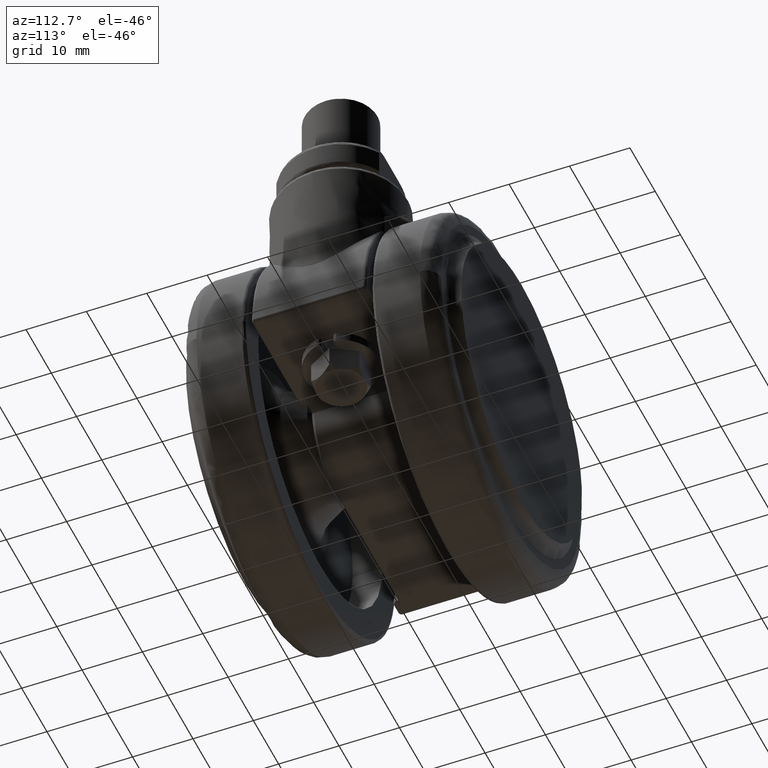
[diagram: clean part render]
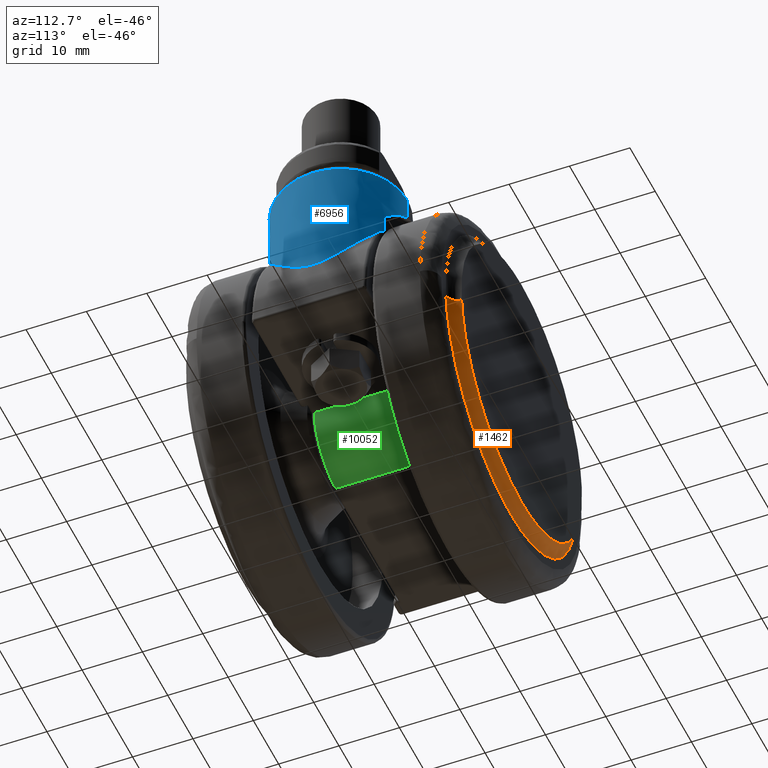
[diagram: same view with three faces highlighted in distinct colors, each labeled with its STEP entity id]
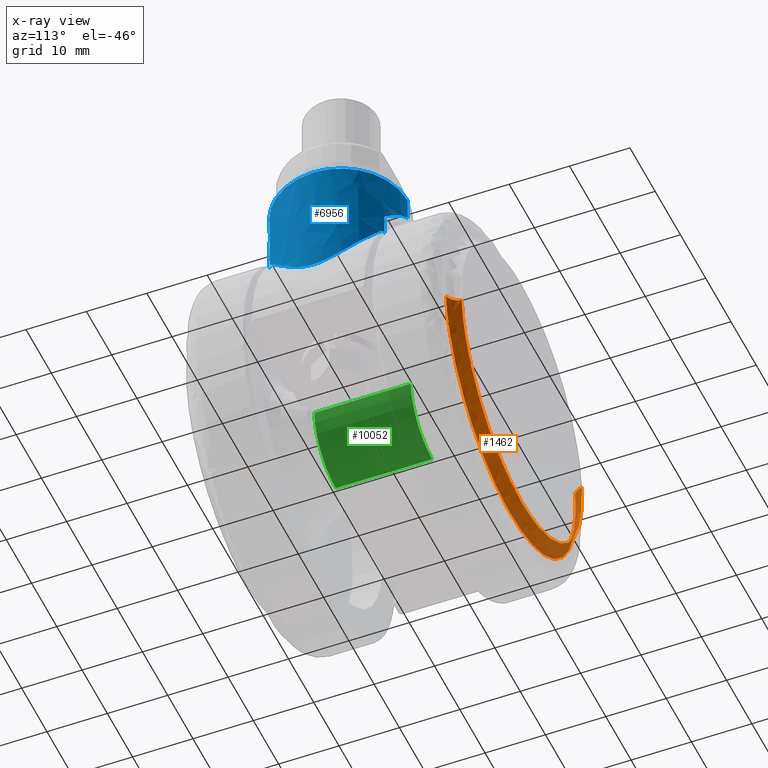
[diagram: x-ray of the same camera — body ghosted, the three highlighted faces saturated]
A machine part, auxiliary view with three faces highlighted in distinct colors.
The next image is the same camera in x-ray (body ghosted, the three faces saturated) — at least one of them is partly hidden behind the body in this view.
Their STEP definitions:

[orange] entity #1462 — the highlighted face is a freeform B-spline surface patch.
#1206=CARTESIAN_POINT('',(23.783222111210389,22.799999999489390,-2.097494252924088));
#1207=VERTEX_POINT('',#1206);
#1225=CARTESIAN_POINT('',(2.792102E-015,22.800000000000001,-23.875534258511252));
#1226=VERTEX_POINT('',#1225);
#1227=CARTESIAN_POINT('',(2.792102E-015,22.800000000000001,-23.875534258511252));
#1228=CARTESIAN_POINT('',(21.862569243453571,22.799999999744692,-23.875534258513881));
#1229=CARTESIAN_POINT('',(23.783222111210392,22.799999999489387,-2.097494252924089));
#1237=(BOUNDED_CURVE()B_SPLINE_CURVE(2,(#1227,#1228,#1229),.UNSPECIFIED.,.F.,.U.)B_SPLINE_CURVE_WITH_KNOTS((3,3),(0.500000000000000,0.734718454855897),.UNSPECIFIED.)CURVE()GEOMETRIC_REPRESENTATION_ITEM()RATIONAL_B_SPLINE_CURVE((1.0,0.725010224969346,0.966381850709618))REPRESENTATION_ITEM(''));
#1238=EDGE_CURVE('',#1226,#1207,#1237,.T.);
#1240=CARTESIAN_POINT('',(-23.783222111210382,22.799999999489401,2.097494252924087));
#1241=VERTEX_POINT('',#1240);
#1242=CARTESIAN_POINT('',(-23.783222111210382,22.799999999489398,2.097494252924088));
#1243=CARTESIAN_POINT('',(-23.875534258569946,22.799999999499686,1.050778486631239));
#1244=CARTESIAN_POINT('',(-23.875534258568631,22.799999999510920,5.060183E-012));
#1245=CARTESIAN_POINT('',(-23.875534258538682,22.799999999766225,-23.875534258508829));
#1246=CARTESIAN_POINT('',(2.792102E-015,22.800000000000001,-23.875534258511252));
#1254=(BOUNDED_CURVE()B_SPLINE_CURVE(2,(#1242,#1243,#1244,#1245,#1246),.UNSPECIFIED.,.F.,.U.)B_SPLINE_CURVE_WITH_KNOTS((3,2,3),(0.234718454855897,0.250000000000000,0.500000000000000),.UNSPECIFIED.)CURVE()GEOMETRIC_REPRESENTATION_ITEM()RATIONAL_B_SPLINE_CURVE((0.966381850709618,0.982096556217202,1.0,0.707106781186547,1.0))REPRESENTATION_ITEM(''));
#1255=EDGE_CURVE('',#1241,#1226,#1254,.T.);
#1302=CARTESIAN_POINT('',(25.704905294196660,21.002230012307500,-2.266971685981109));
#1303=VERTEX_POINT('',#1302);
#1321=CARTESIAN_POINT('',(25.704905294196664,21.002230012307500,-2.266971685981109));
#1322=CARTESIAN_POINT('',(23.984676776129255,21.083073021873290,-2.115260979418126));
#1323=CARTESIAN_POINT('',(23.783222111210392,22.799999999489394,-2.097494252924089));
#1331=(BOUNDED_CURVE()B_SPLINE_CURVE(2,(#1321,#1322,#1323),.UNSPECIFIED.,.F.,.U.)B_SPLINE_CURVE_WITH_KNOTS((3,3),(-1.703172706421857,-0.291449015805452),.UNSPECIFIED.)CURVE()GEOMETRIC_REPRESENTATION_ITEM()RATIONAL_B_SPLINE_CURVE((0.892442377405242,0.681244095356117,0.894057745885278))REPRESENTATION_ITEM(''));
#1332=EDGE_CURVE('',#1303,#1207,#1331,.T.);
#1336=CARTESIAN_POINT('',(-25.704905294196660,21.002230012307500,2.266971685981101));
#1337=VERTEX_POINT('',#1336);
#1338=CARTESIAN_POINT('',(-25.704905294196656,21.002230012307511,2.266971685981101));
#1339=CARTESIAN_POINT('',(-23.984676776129259,21.083073021873311,2.115260979418123));
#1340=CARTESIAN_POINT('',(-23.783222111210382,22.799999999489394,2.097494252924087));
#1348=(BOUNDED_CURVE()B_SPLINE_CURVE(2,(#1338,#1339,#1340),.UNSPECIFIED.,.F.,.U.)B_SPLINE_CURVE_WITH_KNOTS((3,3),(-1.703172706421852,-0.291449015805456),.UNSPECIFIED.)CURVE()GEOMETRIC_REPRESENTATION_ITEM()RATIONAL_B_SPLINE_CURVE((0.892442377405241,0.681244095356118,0.894057745885277))REPRESENTATION_ITEM(''));
#1349=EDGE_CURVE('',#1337,#1241,#1348,.T.);
#1382=CARTESIAN_POINT('',(-25.770919224174243,21.000298617983265,3.000662758505903));
#1383=CARTESIAN_POINT('',(-25.802582218380341,21.000298617983265,2.641640070902790));
#1384=CARTESIAN_POINT('',(-28.113027338513415,21.000298617983258,-23.556204996762741));
#1385=CARTESIAN_POINT('',(-2.278411170875343,21.000298617983258,-25.834616167638092));
#1386=CARTESIAN_POINT('',(23.556204996762741,21.000298617983258,-28.113027338513429));
#1387=CARTESIAN_POINT('',(25.866650116892114,21.000298617983265,-1.915182270890005));
#1388=CARTESIAN_POINT('',(25.898313111094588,21.000298617983258,-1.556159583328020));
#1389=CARTESIAN_POINT('',(-23.817966024781878,20.966653986003571,2.773268699196423));
#1390=CARTESIAN_POINT('',(-23.847229556815165,20.966653986003585,2.441453209765396));
#1391=CARTESIAN_POINT('',(-25.982586192516059,20.966653986003582,-21.771085672388139));
#1392=CARTESIAN_POINT('',(-2.105750260063967,20.966653986003585,-23.876835932452110));
#1393=CARTESIAN_POINT('',(21.771085672388139,20.966653986003571,-25.982586192516081));
#1394=CARTESIAN_POINT('',(23.906442308085630,20.966653986003582,-1.770047310401454));
#1395=CARTESIAN_POINT('',(23.935705840115549,20.966653986003575,-1.438231821008438));
#1396=CARTESIAN_POINT('',(-23.713570901116615,22.929511528702143,2.761113348546062));
#1397=CARTESIAN_POINT('',(-23.742706169886681,22.929511528702136,2.430752220038095));
#1398=CARTESIAN_POINT('',(-25.868703449720620,22.929511528702140,-21.675662109405003));
#1399=CARTESIAN_POINT('',(-2.096520670157810,22.929511528702136,-23.772182779562819));
#1400=CARTESIAN_POINT('',(21.675662109405003,22.929511528702140,-25.868703449720620));
#1401=CARTESIAN_POINT('',(23.801659389235532,22.929511528702140,-1.762289120316269));
#1402=CARTESIAN_POINT('',(23.830794658002265,22.929511528702132,-1.431927991846147));
#1410=(BOUNDED_SURFACE()B_SPLINE_SURFACE(2,2,((#1382,#1389,#1396),(#1383,#1390,#1397),(#1384,#1391,#1398),(#1385,#1392,#1399),(#1386,#1393,#1400),(#1387,#1394,#1401),(#1388,#1395,#1402)),.UNSPECIFIED.,.F.,.F.,.U.)B_SPLINE_SURFACE_WITH_KNOTS((3,1,2,1,3),(3,3),(0.0,0.859406673807440,43.829740360443992,86.800074047080543,87.659480720787798),(0.0,3.291618988373867),.UNSPECIFIED.)GEOMETRIC_REPRESENTATION_ITEM()RATIONAL_B_SPLINE_SURFACE(((0.925314182526342,0.666727536463893,0.927111751548754),(0.919956585690493,0.662867164055054,0.921743746734416),(0.646719147085479,0.465988171221028,0.647975501226541),(0.914598988854644,0.659006791646214,0.916375741920079),(0.646719147085479,0.465988171221028,0.647975501226541),(0.919956585689869,0.662867164054603,0.921743746733790),(0.925314182525093,0.666727536462993,0.927111751547502)))REPRESENTATION_ITEM('')SURFACE());
#1411=CARTESIAN_POINT('',(2.571946E-015,21.002230012286851,-25.804676258992949));
#1412=VERTEX_POINT('',#1411);
#1413=CARTESIAN_POINT('',(6.417362027172168,21.002230012288340,-24.993974902826331));
#1414=VERTEX_POINT('',#1413);
#1415=CARTESIAN_POINT('',(2.571946E-015,21.002230012286851,-25.804676258992949));
#1416=CARTESIAN_POINT('',(3.259888712804901,21.002230012287452,-25.804676258996068));
#1417=CARTESIAN_POINT('',(6.417362027172168,21.002230012288340,-24.993974902826327));
#1425=(BOUNDED_CURVE()B_SPLINE_CURVE(2,(#1415,#1416,#1417),.UNSPECIFIED.,.F.,.U.)B_SPLINE_CURVE_WITH_KNOTS((3,3),(0.500000000000000,0.542443238243576),.UNSPECIFIED.)CURVE()GEOMETRIC_REPRESENTATION_ITEM()RATIONAL_B_SPLINE_CURVE((1.0,0.950274653335891,0.917433344553455))REPRESENTATION_ITEM(''));
#1426=EDGE_CURVE('',#1412,#1414,#1425,.T.);
#1427=ORIENTED_EDGE('',*,*,#1426,.F.);
#1428=CARTESIAN_POINT('',(-25.704905294196656,21.002230012307503,2.266971685981102));
#1429=CARTESIAN_POINT('',(-25.804676258562221,21.002230012307088,1.135681336940851));
#1430=CARTESIAN_POINT('',(-25.804676258571892,21.002230012306629,-3.713509E-011));
#1431=CARTESIAN_POINT('',(-25.804676258791684,21.002230012296312,-25.804676259010705));
#1432=CARTESIAN_POINT('',(2.571946E-015,21.002230012286851,-25.804676258992949));
#1440=(BOUNDED_CURVE()B_SPLINE_CURVE(2,(#1428,#1429,#1430,#1431,#1432),.UNSPECIFIED.,.F.,.U.)B_SPLINE_CURVE_WITH_KNOTS((3,2,3),(0.234718454855625,0.250000000000000,0.500000000000000),.UNSPECIFIED.)CURVE()GEOMETRIC_REPRESENTATION_ITEM()RATIONAL_B_SPLINE_CURVE((0.966381850709060,0.982096556216884,1.0,0.707106781186547,1.0))REPRESENTATION_ITEM(''));
#1441=EDGE_CURVE('',#1337,#1412,#1440,.T.);
#1442=ORIENTED_EDGE('',*,*,#1441,.F.);
#1443=ORIENTED_EDGE('',*,*,#1349,.T.);
#1444=ORIENTED_EDGE('',*,*,#1255,.T.);
#1445=ORIENTED_EDGE('',*,*,#1238,.T.);
#1446=ORIENTED_EDGE('',*,*,#1332,.F.);
#1447=CARTESIAN_POINT('',(6.417362027172168,21.002230012288340,-24.993974902826327));
#1448=CARTESIAN_POINT('',(24.100987604364537,21.002230012298700,-20.453591561398348));
#1449=CARTESIAN_POINT('',(25.704905294196664,21.002230012307496,-2.266971685981109));
#1457=(BOUNDED_CURVE()B_SPLINE_CURVE(2,(#1447,#1448,#1449),.UNSPECIFIED.,.F.,.U.)B_SPLINE_CURVE_WITH_KNOTS((3,3),(0.542443238243576,0.734718454855625),.UNSPECIFIED.)CURVE()GEOMETRIC_REPRESENTATION_ITEM()RATIONAL_B_SPLINE_CURVE((0.917433344553455,0.768656530594835,0.966381850709060))REPRESENTATION_ITEM(''));
#1458=EDGE_CURVE('',#1414,#1303,#1457,.T.);
#1459=ORIENTED_EDGE('',*,*,#1458,.F.);
#1460=EDGE_LOOP('',(#1427,#1442,#1443,#1444,#1445,#1446,#1459));
#1461=FACE_OUTER_BOUND('',#1460,.T.);
#1462=ADVANCED_FACE('',(#1461),#1410,.F.);

[blue] entity #6956 — the highlighted face is a freeform B-spline surface patch.
#6111=CARTESIAN_POINT('',(16.999995239625019,-10.999999999997939,31.000000000230958));
#6112=VERTEX_POINT('',#6111);
#6126=CARTESIAN_POINT('',(27.996526082114190,-0.276431049960777,31.000000000454630));
#6127=VERTEX_POINT('',#6126);
#6128=CARTESIAN_POINT('',(27.996526082114183,-0.276431049960777,31.000000000454630));
#6129=CARTESIAN_POINT('',(27.726956521208592,-11.000004642211996,31.000000000452236));
#6130=CARTESIAN_POINT('',(16.999995239625022,-10.999999999997945,31.000000000230973));
#6138=(BOUNDED_CURVE()B_SPLINE_CURVE(2,(#6128,#6129,#6130),.UNSPECIFIED.,.F.,.U.)B_SPLINE_CURVE_WITH_KNOTS((3,3),(0.004420108231530,0.250000076502117),.UNSPECIFIED.)CURVE()GEOMETRIC_REPRESENTATION_ITEM()RATIONAL_B_SPLINE_CURVE((0.989826157678553,0.712285173637806,1.000000179255664))REPRESENTATION_ITEM(''));
#6139=EDGE_CURVE('',#6127,#6112,#6138,.T.);
#6242=CARTESIAN_POINT('',(17.000004760374981,10.999999999997939,31.000000000231289));
#6243=VERTEX_POINT('',#6242);
#6244=CARTESIAN_POINT('',(28.0,0.0,31.0));
#6245=VERTEX_POINT('',#6244);
#6246=CARTESIAN_POINT('',(17.000004760374978,10.999999999997938,31.000000000231285));
#6247=CARTESIAN_POINT('',(28.000000000000014,10.999995239625534,31.000000000003425));
#6248=CARTESIAN_POINT('',(28.0,0.0,31.0));
#6256=(BOUNDED_CURVE()B_SPLINE_CURVE(2,(#6246,#6247,#6248),.UNSPECIFIED.,.F.,.U.)B_SPLINE_CURVE_WITH_KNOTS((3,3),(0.750000076502117,1.0),.UNSPECIFIED.)CURVE()GEOMETRIC_REPRESENTATION_ITEM()RATIONAL_B_SPLINE_CURVE((0.999999820744446,0.707106870814352,1.0))REPRESENTATION_ITEM(''));
#6257=EDGE_CURVE('',#6243,#6245,#6256,.T.);
#6313=CARTESIAN_POINT('',(28.0,0.0,31.0));
#6314=CARTESIAN_POINT('',(28.0,-0.138237353399228,31.000000000227317));
#6315=CARTESIAN_POINT('',(27.996526082114183,-0.276431049960777,31.000000000454630));
#6323=(BOUNDED_CURVE()B_SPLINE_CURVE(2,(#6313,#6314,#6315),.UNSPECIFIED.,.F.,.U.)B_SPLINE_CURVE_WITH_KNOTS((3,3),(0.0,0.004420108231530),.UNSPECIFIED.)CURVE()GEOMETRIC_REPRESENTATION_ITEM()RATIONAL_B_SPLINE_CURVE((1.0,0.994821521090253,0.989826157678553))REPRESENTATION_ITEM(''));
#6324=EDGE_CURVE('',#6245,#6127,#6323,.T.);
#6550=CARTESIAN_POINT('',(17.000009794369749,11.000007899756641,27.112795908546669));
#6551=VERTEX_POINT('',#6550);
#6552=CARTESIAN_POINT('',(17.000004760374981,10.999999999997939,31.000000000231289));
#6553=CARTESIAN_POINT('',(17.000009794369749,11.000007899756641,27.112795908546669));
#6554=QUASI_UNIFORM_CURVE('',1,(#6552,#6553),.UNSPECIFIED.,.F.,.U.);
#6555=EDGE_CURVE('',#6243,#6551,#6554,.T.);
#6719=CARTESIAN_POINT('',(16.999990466832809,-11.000007714933950,27.112808754883481));
#6720=VERTEX_POINT('',#6719);
#6738=CARTESIAN_POINT('',(16.999995239625019,-10.999999999997939,31.000000000230958));
#6739=CARTESIAN_POINT('',(16.999990466832809,-11.000007714933950,27.112808754883481));
#6740=QUASI_UNIFORM_CURVE('',1,(#6738,#6739),.UNSPECIFIED.,.F.,.U.);
#6741=EDGE_CURVE('',#6112,#6720,#6740,.T.);
#6746=CARTESIAN_POINT('',(17.000009520749959,10.999999999995881,31.505741760073221));
#6747=CARTESIAN_POINT('',(28.000009520745841,10.999990479245914,31.505741760073224));
#6748=CARTESIAN_POINT('',(27.999999999995879,-0.000009520749961,31.505741760073221));
#6749=CARTESIAN_POINT('',(27.999990479245920,-11.000009520745836,31.505741760073224));
#6750=CARTESIAN_POINT('',(16.999990479250041,-10.999999999995881,31.505741760073221));
#6751=CARTESIAN_POINT('',(17.000009520749959,10.999999999995881,10.251944312102101));
#6752=CARTESIAN_POINT('',(28.000009520745841,10.999990479245914,10.251944312102097));
#6753=CARTESIAN_POINT('',(27.999999999995879,-0.000009520749961,10.251944312102101));
#6754=CARTESIAN_POINT('',(27.999990479245920,-11.000009520745836,10.251944312102097));
#6755=CARTESIAN_POINT('',(16.999990479250041,-10.999999999995881,10.251944312102101));
#6763=(BOUNDED_SURFACE()B_SPLINE_SURFACE(2,1,((#6746,#6751),(#6747,#6752),(#6748,#6753),(#6749,#6754),(#6750,#6755)),.UNSPECIFIED.,.F.,.F.,.U.)B_SPLINE_SURFACE_WITH_KNOTS((3,2,3),(2,2),(0.0,18.225396744416170,36.450793488832353),(0.0,21.253797447971120),.UNSPECIFIED.)GEOMETRIC_REPRESENTATION_ITEM()RATIONAL_B_SPLINE_SURFACE(((1.0,1.0),(0.707106781186548,0.707106781186548),(1.0,1.0),(0.707106781186548,0.707106781186548),(1.0,1.0)))REPRESENTATION_ITEM('')SURFACE());
#6764=ORIENTED_EDGE('',*,*,#6139,.T.);
#6765=ORIENTED_EDGE('',*,*,#6741,.T.);
#6766=CARTESIAN_POINT('',(22.545268253204998,-9.499999999999890,22.712305563134048));
#6767=VERTEX_POINT('',#6766);
#6768=CARTESIAN_POINT('',(22.545268253204998,-9.499999999999890,22.712305563134048));
#6769=CARTESIAN_POINT('',(22.167289215062439,-9.720630469068249,23.087453845471479));
#6770=CARTESIAN_POINT('',(21.776530126800971,-9.918602141239646,23.456570447196668));
#6771=CARTESIAN_POINT('',(20.968345260679619,-10.268696058473679,24.181635871245550));
#6772=CARTESIAN_POINT('',(20.550924551755159,-10.420820366688201,24.537589904408328));
#6773=CARTESIAN_POINT('',(19.687601383037709,-10.676110416657711,25.235429212061579));
#6774=CARTESIAN_POINT('',(19.241710164499221,-10.779302077151341,25.577317354413061));
#6775=CARTESIAN_POINT('',(18.664819928722348,-10.873910194053590,25.995364981936032));
#6776=CARTESIAN_POINT('',(18.548462701979869,-10.891104144717611,26.078508955964310));
#6777=CARTESIAN_POINT('',(18.313733785867409,-10.921903805418481,26.243852928411759));
#6778=CARTESIAN_POINT('',(18.195821095978779,-10.935447304434939,26.325728460602249));
#6779=CARTESIAN_POINT('',(17.840905481143469,-10.970380966546070,26.568655665219001));
#6780=CARTESIAN_POINT('',(17.602527044591390,-10.986106153782000,26.727148063175662));
#6781=CARTESIAN_POINT('',(17.242037989200121,-10.997988854699139,26.959936044332071));
#6782=CARTESIAN_POINT('',(17.121231483605161,-11.000001040730631,27.036802665198920));
#6783=CARTESIAN_POINT('',(16.999990466832809,-11.000007714933950,27.112808754883481));
#6784=B_SPLINE_CURVE_WITH_KNOTS('',3,(#6768,#6769,#6770,#6771,#6772,#6773,#6774,#6775,#6776,#6777,#6778,#6779,#6780,#6781,#6782,#6783),.UNSPECIFIED.,.F.,.U.,(4,2,2,2,2,2,2,4),(0.0,0.125000000000000,0.250000000000001,0.375000000000001,0.406250000000001,0.437500000000000,0.500000000000000,0.531330342078754),.UNSPECIFIED.);
#6785=EDGE_CURVE('',#6767,#6720,#6784,.T.);
#6786=ORIENTED_EDGE('',*,*,#6785,.F.);
#6787=CARTESIAN_POINT('',(22.545268253204998,-9.499999999999890,19.025269495884299));
#6788=VERTEX_POINT('',#6787);
#6789=CARTESIAN_POINT('',(22.545268253204998,-9.499999999999890,19.025269495884299));
#6790=CARTESIAN_POINT('',(22.545268253204998,-9.499999999999890,22.712305563134048));
#6791=QUASI_UNIFORM_CURVE('',1,(#6789,#6790),.UNSPECIFIED.,.F.,.U.);
#6792=EDGE_CURVE('',#6788,#6767,#6791,.T.);
#6793=ORIENTED_EDGE('',*,*,#6792,.F.);
#6794=CARTESIAN_POINT('',(23.324555320337549,-8.999999999999901,18.867037899694651));
#6795=VERTEX_POINT('',#6794);
#6796=CARTESIAN_POINT('',(22.545268253204998,-9.499999999999890,19.025269495884299));
#6797=CARTESIAN_POINT('',(22.545268253205009,-9.499999999999893,19.051251295366299));
#6798=CARTESIAN_POINT('',(22.546666518652689,-9.499184577076584,19.077089771332119));
#6799=CARTESIAN_POINT('',(22.553806669722960,-9.495011773234042,19.128321100620930));
#6800=CARTESIAN_POINT('',(22.559527148594309,-9.491668238500488,19.153449666550351));
#6801=CARTESIAN_POINT('',(22.572974731769371,-9.483774546850482,19.188829291551169));
#6802=CARTESIAN_POINT('',(22.578363263438408,-9.480607380926482,19.200394750075539));
#6803=CARTESIAN_POINT('',(22.590908638648269,-9.473214533855181,19.221878443997191));
#6804=CARTESIAN_POINT('',(22.598035341502101,-9.469006752669690,19.231796393401300));
#6805=CARTESIAN_POINT('',(22.622326513076921,-9.454617858358690,19.258732368110270));
#6806=CARTESIAN_POINT('',(22.642009358001349,-9.442898884543132,19.272073449208040));
#6807=CARTESIAN_POINT('',(22.684319553022188,-9.417490119910422,19.288539968597949));
#6808=CARTESIAN_POINT('',(22.706472566133691,-9.404086531966172,19.291816749200340));
#6809=CARTESIAN_POINT('',(22.750754225303659,-9.377073023545037,19.291877115909390));
#6810=CARTESIAN_POINT('',(22.772500123877901,-9.363700182787865,19.288723076708688));
#6811=CARTESIAN_POINT('',(22.815468317971629,-9.337074865073110,19.278428247391929));
#6812=CARTESIAN_POINT('',(22.836711692914879,-9.323807497875961,19.271210402677092));
#6813=CARTESIAN_POINT('',(22.877819351500460,-9.297947586149528,19.254288377430601));
#6814=CARTESIAN_POINT('',(22.897840210144679,-9.285258353136316,19.244535975582089));
#6815=CARTESIAN_POINT('',(22.956706621214259,-9.247692336163134,19.212426743435600));
#6816=CARTESIAN_POINT('',(22.994522046638611,-9.223209694470974,19.187147429146901));
#6817=CARTESIAN_POINT('',(23.067268844894681,-9.175518535733540,19.132124401062541));
#6818=CARTESIAN_POINT('',(23.102050626287610,-9.152410460720125,19.102475807027261));
#6819=CARTESIAN_POINT('',(23.202857979030959,-9.084663408243422,19.008822590792011));
#6820=CARTESIAN_POINT('',(23.265393174220751,-9.041574918442398,18.940177666377060));
#6821=CARTESIAN_POINT('',(23.324555320337449,-8.999999999999611,18.867037899694751));
#6822=B_SPLINE_CURVE_WITH_KNOTS('',3,(#6796,#6797,#6798,#6799,#6800,#6801,#6802,#6803,#6804,#6805,#6806,#6807,#6808,#6809,#6810,#6811,#6812,#6813,#6814,#6815,#6816,#6817,#6818,#6819,#6820,#6821),.UNSPECIFIED.,.F.,.U.,(4,2,2,2,2,2,2,2,2,2,2,2,4),(0.0,0.062499999999999,0.124999999999998,0.156249999999998,0.187499999999997,0.249999999999996,0.312499999999995,0.374999999999994,0.437499999999993,0.499999999999992,0.624999999999991,0.749999999999990,1.0),.UNSPECIFIED.);
#6823=EDGE_CURVE('',#6788,#6795,#6822,.T.);
#6824=ORIENTED_EDGE('',*,*,#6823,.T.);
#6825=CARTESIAN_POINT('',(23.324555320336351,9.000000000000350,18.867037899696101));
#6826=VERTEX_POINT('',#6825);
#6827=CARTESIAN_POINT('',(23.324555320336351,9.000000000000350,18.867037899696101));
#6828=CARTESIAN_POINT('',(23.649288040847988,8.771801104978170,18.465583980741570));
#6829=CARTESIAN_POINT('',(23.957913617531009,8.528775991714531,18.062871997618050));
#6830=CARTESIAN_POINT('',(24.545349796681428,8.013755565999569,17.256151745564910));
#6831=CARTESIAN_POINT('',(24.824155762946891,7.741775625295689,16.852129829592229));
#6832=CARTESIAN_POINT('',(25.353455664275021,7.167445967725816,16.044789653221471));
#6833=CARTESIAN_POINT('',(25.603952305852790,6.865143975118699,15.641441006473441));
#6834=CARTESIAN_POINT('',(25.958961426084350,6.385652624129929,15.039500799192400));
#6835=CARTESIAN_POINT('',(26.073835120980991,6.221455710357777,14.839381244568941));
#6836=CARTESIAN_POINT('',(26.240940525949881,5.967852791040507,14.540497540421461));
#6837=CARTESIAN_POINT('',(26.295821832710960,5.882019401012149,14.440998980634580));
#6838=CARTESIAN_POINT('',(26.403561829741449,5.708194170980740,14.243055153982491));
#6839=CARTESIAN_POINT('',(26.456416661106740,5.620214674183848,14.144620018688711));
#6840=CARTESIAN_POINT('',(26.611937020931141,5.352866794076592,13.851131364285649));
#6841=CARTESIAN_POINT('',(26.711563535787921,5.170107835782663,13.657878650203790));
#6842=CARTESIAN_POINT('',(26.902608863976251,4.794039948766169,13.277609425722471));
#6843=CARTESIAN_POINT('',(26.994030359382720,4.600742064015061,13.090583390890851));
#6844=CARTESIAN_POINT('',(27.168374055683820,4.201385417639906,12.724798612457080));
#6845=CARTESIAN_POINT('',(27.251378965239031,3.995031041662864,12.545829049169310));
#6846=CARTESIAN_POINT('',(27.406771910947089,3.570734113080649,12.202636414290749));
#6847=CARTESIAN_POINT('',(27.479366163115539,3.352393905186029,12.037985347135381));
#6848=CARTESIAN_POINT('',(27.613465223847761,2.900002761783793,11.727113637881059));
#6849=CARTESIAN_POINT('',(27.674985213834500,2.665985188202105,11.580850218466351));
#6850=CARTESIAN_POINT('',(27.757727293133382,2.299347749123121,11.380413002706240));
#6851=CARTESIAN_POINT('',(27.783711175663409,2.174516463175690,11.316782238616410));
#6852=CARTESIAN_POINT('',(27.832154888159842,1.918689408858312,11.197112181738129));
#6853=CARTESIAN_POINT('',(27.854390419905201,1.788828599512356,11.141627965074640));
#6854=CARTESIAN_POINT('',(27.914522778927580,1.394270093247166,10.990503879772460));
#6855=CARTESIAN_POINT('',(27.946004051761530,1.124019997164171,10.909830021258060));
#6856=CARTESIAN_POINT('',(27.972888490830211,0.774996626609691,10.840559502474610));
#6857=CARTESIAN_POINT('',(27.977638643760262,0.704629150953255,10.828290025010340));
#6858=CARTESIAN_POINT('',(27.985827976243961,0.562704282662859,10.807106987100971));
#6859=CARTESIAN_POINT('',(27.989235877767399,0.491661941562779,10.798274488482811));
#6860=CARTESIAN_POINT('',(27.997379500251188,0.278909833853703,10.777150315301100));
#6861=CARTESIAN_POINT('',(28.000051387830489,0.137309871439323,10.770196019569070));
#6862=CARTESIAN_POINT('',(27.999894980128190,-0.286790113104834,10.770602638021179));
#6863=CARTESIAN_POINT('',(27.988907243173621,-0.568588712081201,10.799291033211119));
#6864=CARTESIAN_POINT('',(27.956271233290099,-0.989931585123365,10.883372758591859));
#6865=CARTESIAN_POINT('',(27.942863216201481,-1.127975549288386,10.917794321386539));
#6866=CARTESIAN_POINT('',(27.911548441454048,-1.398819079827656,10.997604337482350));
#6867=CARTESIAN_POINT('',(27.893626728751322,-1.531800519830314,11.043030133416330));
#6868=CARTESIAN_POINT('',(27.833614054940771,-1.924284558026546,11.193821290444390));
#6869=CARTESIAN_POINT('',(27.785306889973221,-2.177362575787694,11.313618933930000));
#6870=CARTESIAN_POINT('',(27.674042590267359,-2.669937691876554,11.583117847291421));
#6871=CARTESIAN_POINT('',(27.612122457327281,-2.904928929365340,11.730280253620720));
#6872=CARTESIAN_POINT('',(27.477690548886759,-3.357641418576872,12.041814793731950));
#6873=CARTESIAN_POINT('',(27.405130617666320,-3.575450464478545,12.206311247921750));
#6874=CARTESIAN_POINT('',(27.250278052283381,-3.997798024602386,12.548209614352810));
#6875=CARTESIAN_POINT('',(27.167977124974328,-4.202314032926681,12.725637118455710));
#6876=CARTESIAN_POINT('',(26.994112615813641,-4.600534215476351,13.090405082292820));
#6877=CARTESIAN_POINT('',(26.902323749422951,-4.794616224744898,13.278182598128589));
#6878=CARTESIAN_POINT('',(26.711526209267511,-5.170166251454881,13.657947276206110));
#6879=CARTESIAN_POINT('',(26.612371938206930,-5.352023450674460,13.850267172507049));
#6880=CARTESIAN_POINT('',(26.303904382194570,-5.882581102455794,14.432518074179770));
#6881=CARTESIAN_POINT('',(26.083627207114439,-6.216437255856112,14.827630013603670));
#6882=CARTESIAN_POINT('',(25.613801530318259,-6.852649019912819,15.625216518996019));
#6883=CARTESIAN_POINT('',(25.364239350026232,-7.154906214875080,16.027761120121649));
#6884=CARTESIAN_POINT('',(24.834581387274739,-7.731268804947447,16.836785074589791));
#6885=CARTESIAN_POINT('',(24.554486262217289,-8.005338107071149,17.243293543884331));
#6886=CARTESIAN_POINT('',(24.109728545623550,-8.395873107139304,17.854536718068061));
#6887=CARTESIAN_POINT('',(23.957697023596769,-8.522301569774424,18.058074369189661));
#6888=CARTESIAN_POINT('',(23.646615534913579,-8.767078980446801,18.463555192368151));
#6889=CARTESIAN_POINT('',(23.487453362546638,-8.885526924496912,18.665653643338079));
#6890=CARTESIAN_POINT('',(23.324555320337520,-8.999999999999828,18.867037899694662));
#6891=B_SPLINE_CURVE_WITH_KNOTS('',3,(#6827,#6828,#6829,#6830,#6831,#6832,#6833,#6834,#6835,#6836,#6837,#6838,#6839,#6840,#6841,#6842,#6843,#6844,#6845,#6846,#6847,#6848,#6849,#6850,#6851,#6852,#6853,#6854,#6855,#6856,#6857,#6858,#6859,#6860,#6861,#6862,#6863,#6864,#6865,#6866,#6867,#6868,#6869,#6870,#6871,#6872,#6873,#6874,#6875,#6876,#6877,#6878,#6879,#6880,#6881,#6882,#6883,#6884,#6885,#6886,#6887,#6888,#6889,#6890),.UNSPECIFIED.,.F.,.U.,(4,2,2,2,2,2,2,2,2,2,2,2,2,2,2,2,2,2,2,2,2,2,2,2,2,2,2,2,2,2,2,4),(0.0,0.062499999999999,0.124999999999998,0.187499999999997,0.218749999999997,0.234374999999997,0.249999999999997,0.281249999999997,0.312499999999997,0.343749999999998,0.374999999999998,0.406249999999998,0.421874999999998,0.437499999999998,0.468749999999998,0.476562499999998,0.484374999999998,0.499999999999998,0.531249999999998,0.546874999999998,0.562499999999998,0.593749999999998,0.624999999999999,0.656249999999999,0.687499999999999,0.718749999999999,0.749999999999999,0.812499999999999,0.874999999999999,0.937500000000000,0.968750000000000,1.0),.UNSPECIFIED.);
#6892=EDGE_CURVE('',#6826,#6795,#6891,.T.);
#6893=ORIENTED_EDGE('',*,*,#6892,.F.);
#6894=CARTESIAN_POINT('',(22.545268253205649,9.499999999999890,19.025269495883549));
#6895=VERTEX_POINT('',#6894);
#6896=CARTESIAN_POINT('',(23.324555320336351,9.000000000000350,18.867037899696101));
#6897=CARTESIAN_POINT('',(23.265412600731800,9.041561266881413,18.940153650167741));
#6898=CARTESIAN_POINT('',(23.202946840567289,9.084600927536540,19.008712148213441));
#6899=CARTESIAN_POINT('',(23.102394105088809,9.152181000507737,19.102170567535790));
#6900=CARTESIAN_POINT('',(23.067722537815719,9.175217657605383,19.131743224496500));
#6901=CARTESIAN_POINT('',(22.995282849124170,9.222714319512930,19.186609373439921));
#6902=CARTESIAN_POINT('',(22.957273731172151,9.247327594783220,19.212078992124010));
#6903=CARTESIAN_POINT('',(22.878595353834442,9.297542396742800,19.255071219146640));
#6904=CARTESIAN_POINT('',(22.837866192726668,9.323192344011053,19.272986157111660));
#6905=CARTESIAN_POINT('',(22.772888850057740,9.363461091753688,19.288667077229039));
#6906=CARTESIAN_POINT('',(22.750998318203919,9.376923621388315,19.291862295029841));
#6907=CARTESIAN_POINT('',(22.706532870380411,9.404050236818323,19.291831881645699));
#6908=CARTESIAN_POINT('',(22.684622286724640,9.417307400180526,19.288606755611141));
#6909=CARTESIAN_POINT('',(22.652883138143672,9.436369245083156,19.276330348053861));
#6910=CARTESIAN_POINT('',(22.642591987879950,9.442525065033161,19.270974375099190));
#6911=CARTESIAN_POINT('',(22.623466923495851,9.453927422284066,19.257856224565568));
#6912=CARTESIAN_POINT('',(22.614420557584818,9.459300746381112,19.249935308087910));
#6913=CARTESIAN_POINT('',(22.598204598954499,9.468906699094786,19.232013723307389));
#6914=CARTESIAN_POINT('',(22.591055226331012,9.473128042412141,19.222099733490690));
#6915=CARTESIAN_POINT('',(22.578457792970379,9.480551782668922,19.200585804560660));
#6916=CARTESIAN_POINT('',(22.573068243981819,9.483719606027211,19.189045796776171));
#6917=CARTESIAN_POINT('',(22.559570697163611,9.491642773224930,19.153622526488380));
#6918=CARTESIAN_POINT('',(22.553797831248769,9.495016939764346,19.128264903992569));
#6919=CARTESIAN_POINT('',(22.546670578439759,9.499182203277615,19.077111675529700));
#6920=CARTESIAN_POINT('',(22.545268253205641,9.499999999999908,19.051274908447070));
#6921=CARTESIAN_POINT('',(22.545268253205649,9.499999999999890,19.025269495883549));
#6922=B_SPLINE_CURVE_WITH_KNOTS('',3,(#6896,#6897,#6898,#6899,#6900,#6901,#6902,#6903,#6904,#6905,#6906,#6907,#6908,#6909,#6910,#6911,#6912,#6913,#6914,#6915,#6916,#6917,#6918,#6919,#6920,#6921),.UNSPECIFIED.,.F.,.U.,(4,2,2,2,2,2,2,2,2,2,2,2,4),(0.0,0.249999999999999,0.374999999999994,0.499999999999990,0.624999999999986,0.687499999999986,0.749999999999987,0.781249999999989,0.812499999999992,0.843749999999994,0.874999999999996,0.937499999999998,1.0),.UNSPECIFIED.);
#6923=EDGE_CURVE('',#6826,#6895,#6922,.T.);
#6924=ORIENTED_EDGE('',*,*,#6923,.T.);
#6925=CARTESIAN_POINT('',(22.545268253205649,9.499999999999890,22.712305563133452));
#6926=VERTEX_POINT('',#6925);
#6927=CARTESIAN_POINT('',(22.545268253205649,9.499999999999890,22.712305563133452));
#6928=CARTESIAN_POINT('',(22.545268253205649,9.499999999999890,19.025269495883549));
#6929=QUASI_UNIFORM_CURVE('',1,(#6927,#6928),.UNSPECIFIED.,.F.,.U.);
#6930=EDGE_CURVE('',#6926,#6895,#6929,.T.);
#6931=ORIENTED_EDGE('',*,*,#6930,.F.);
#6932=CARTESIAN_POINT('',(17.000009794369749,11.000007899756641,27.112795908546669));
#6933=CARTESIAN_POINT('',(17.121383946381041,11.000000839311340,27.036706228392280));
#6934=CARTESIAN_POINT('',(17.242309036891140,10.997983849546170,26.959762645711230));
#6935=CARTESIAN_POINT('',(17.603395757277760,10.986069097225760,26.726581607948379));
#6936=CARTESIAN_POINT('',(17.842207182064829,10.970289210999271,26.567786052287740));
#6937=CARTESIAN_POINT('',(18.197687431387450,10.935244954389470,26.324439240540361));
#6938=CARTESIAN_POINT('',(18.315905527325359,10.921640735865260,26.242336051283608));
#6939=CARTESIAN_POINT('',(18.550363469623449,10.890832105176210,26.077155675887060));
#6940=CARTESIAN_POINT('',(18.666593659171351,10.873637046550350,25.994090194010511));
#6941=CARTESIAN_POINT('',(19.242887904723538,10.779036475269580,25.576418401354950));
#6942=CARTESIAN_POINT('',(19.688426760144520,10.675891418183870,25.234777844119488));
#6943=CARTESIAN_POINT('',(20.551234113587519,10.420703452910301,24.537323072144758));
#6944=CARTESIAN_POINT('',(20.968491708779869,10.268635258433481,24.181505980349929));
#6945=CARTESIAN_POINT('',(21.776498977542630,9.918612837708492,23.456596489736320));
#6946=CARTESIAN_POINT('',(22.167243759186999,9.720656971894488,23.087498890587678));
#6947=CARTESIAN_POINT('',(22.545268253205649,9.499999999999890,22.712305563133452));
#6948=B_SPLINE_CURVE_WITH_KNOTS('',3,(#6932,#6933,#6934,#6935,#6936,#6937,#6938,#6939,#6940,#6941,#6942,#6943,#6944,#6945,#6946,#6947),.UNSPECIFIED.,.F.,.U.,(4,2,2,2,2,2,2,4),(0.468706687591770,0.500000000000000,0.562500000000000,0.593750000000000,0.624999999999999,0.750000000000000,0.875000000000000,1.0),.UNSPECIFIED.);
#6949=EDGE_CURVE('',#6551,#6926,#6948,.T.);
#6950=ORIENTED_EDGE('',*,*,#6949,.F.);
#6951=ORIENTED_EDGE('',*,*,#6555,.F.);
#6952=ORIENTED_EDGE('',*,*,#6257,.T.);
#6953=ORIENTED_EDGE('',*,*,#6324,.T.);
#6954=EDGE_LOOP('',(#6764,#6765,#6786,#6793,#6824,#6893,#6924,#6931,#6950,#6951,#6952,#6953));
#6955=FACE_OUTER_BOUND('',#6954,.T.);
#6956=ADVANCED_FACE('',(#6955),#6763,.T.);

[green] entity #10052 — the highlighted face is a freeform B-spline surface patch.
#9178=CARTESIAN_POINT('',(0.0,7.999999999999900,-8.500000000000000));
#9179=VERTEX_POINT('',#9178);
#9262=CARTESIAN_POINT('',(8.500000000000000,7.999999999999789,-2.081831E-015));
#9263=VERTEX_POINT('',#9262);
#9293=CARTESIAN_POINT('',(0.0,7.999999999999900,-8.500000000000000));
#9294=CARTESIAN_POINT('',(8.500000000000002,7.999999999999901,-8.500000000000002));
#9295=CARTESIAN_POINT('',(8.500000000000000,7.999999999999900,0.0));
#9303=(BOUNDED_CURVE()B_SPLINE_CURVE(2,(#9293,#9294,#9295),.UNSPECIFIED.,.F.,.U.)CURVE()GEOMETRIC_REPRESENTATION_ITEM()QUASI_UNIFORM_CURVE()RATIONAL_B_SPLINE_CURVE((1.0,0.707106781186548,1.0))REPRESENTATION_ITEM(''));
#9304=EDGE_CURVE('',#9179,#9263,#9303,.T.);
#9729=CARTESIAN_POINT('',(0.0,-7.999999999999900,-8.500000000000000));
#9730=VERTEX_POINT('',#9729);
#9806=CARTESIAN_POINT('',(8.500000000000000,-7.999999999999789,-2.081831E-015));
#9807=VERTEX_POINT('',#9806);
#9839=CARTESIAN_POINT('',(8.500000000000000,-7.999999999999789,-2.081831E-015));
#9840=CARTESIAN_POINT('',(8.500000000000002,-7.999999999999901,-8.500000000000002));
#9841=CARTESIAN_POINT('',(0.0,-7.999999999999900,-8.500000000000000));
#9849=(BOUNDED_CURVE()B_SPLINE_CURVE(2,(#9839,#9840,#9841),.UNSPECIFIED.,.F.,.U.)CURVE()GEOMETRIC_REPRESENTATION_ITEM()QUASI_UNIFORM_CURVE()RATIONAL_B_SPLINE_CURVE((1.0,0.707106781186548,1.0))REPRESENTATION_ITEM(''));
#9850=EDGE_CURVE('',#9807,#9730,#9849,.T.);
#9993=CARTESIAN_POINT('',(0.0,7.999999999999900,-8.500000000000000));
#9994=CARTESIAN_POINT('',(0.0,-7.999999999999900,-8.500000000000000));
#9995=QUASI_UNIFORM_CURVE('',1,(#9993,#9994),.UNSPECIFIED.,.F.,.U.);
#9996=EDGE_CURVE('',#9179,#9730,#9995,.T.);
#10011=CARTESIAN_POINT('',(8.500000000000000,7.999999999999789,-2.081831E-015));
#10012=CARTESIAN_POINT('',(8.500000000000000,-7.999999999999789,-2.081831E-015));
#10013=QUASI_UNIFORM_CURVE('',1,(#10011,#10012),.UNSPECIFIED.,.F.,.U.);
#10014=EDGE_CURVE('',#9263,#9807,#10013,.T.);
#10032=CARTESIAN_POINT('',(8.499676346045455,8.399999999999896,0.074175551736169));
#10033=CARTESIAN_POINT('',(8.499676346045455,-8.409999999999894,0.074175551736169));
#10034=CARTESIAN_POINT('',(8.577841068246778,8.399999999999896,-8.882614453047236));
#10035=CARTESIAN_POINT('',(8.577841068246778,-8.409999999999894,-8.882614453047236));
#10036=CARTESIAN_POINT('',(-0.370764792605362,8.399999999999896,-8.491909883445789));
#10037=CARTESIAN_POINT('',(-0.370764792605362,-8.409999999999894,-8.491909883445789));
#10045=(BOUNDED_SURFACE()B_SPLINE_SURFACE(1,2,((#10032,#10034,#10036),(#10033,#10035,#10037)),.UNSPECIFIED.,.F.,.F.,.U.)B_SPLINE_SURFACE_WITH_KNOTS((2,2),(3,3),(0.0,16.809999999999789),(0.0,14.607552802872410),.UNSPECIFIED.)GEOMETRIC_REPRESENTATION_ITEM()RATIONAL_B_SPLINE_SURFACE(((1.0,0.688354575693754,1.0),(1.0,0.688354575693754,1.0)))REPRESENTATION_ITEM('')SURFACE());
#10046=ORIENTED_EDGE('',*,*,#10014,.T.);
#10047=ORIENTED_EDGE('',*,*,#9850,.T.);
#10048=ORIENTED_EDGE('',*,*,#9996,.F.);
#10049=ORIENTED_EDGE('',*,*,#9304,.T.);
#10050=EDGE_LOOP('',(#10046,#10047,#10048,#10049));
#10051=FACE_OUTER_BOUND('',#10050,.T.);
#10052=ADVANCED_FACE('',(#10051),#10045,.T.);